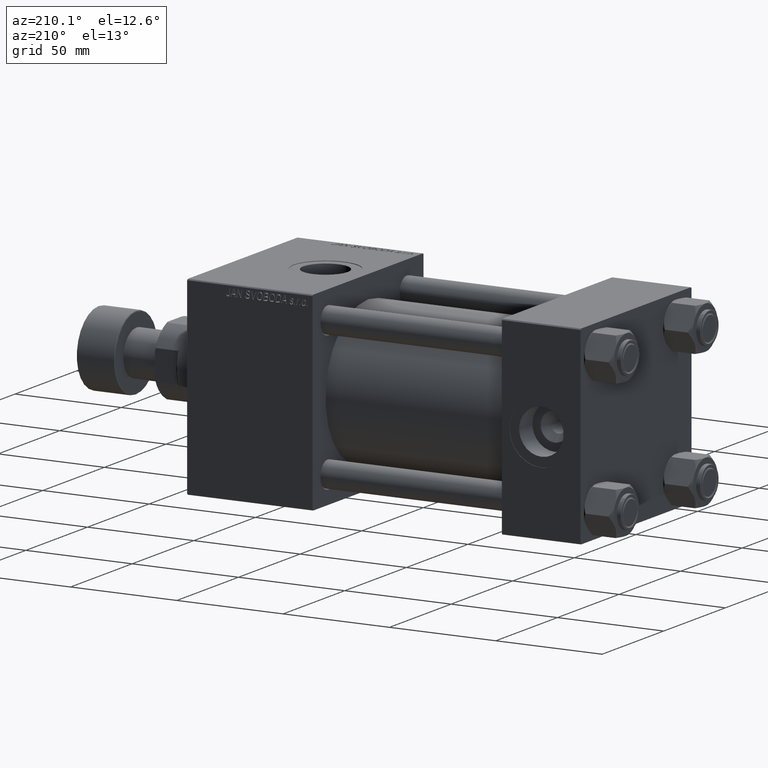
[diagram: clean part render]
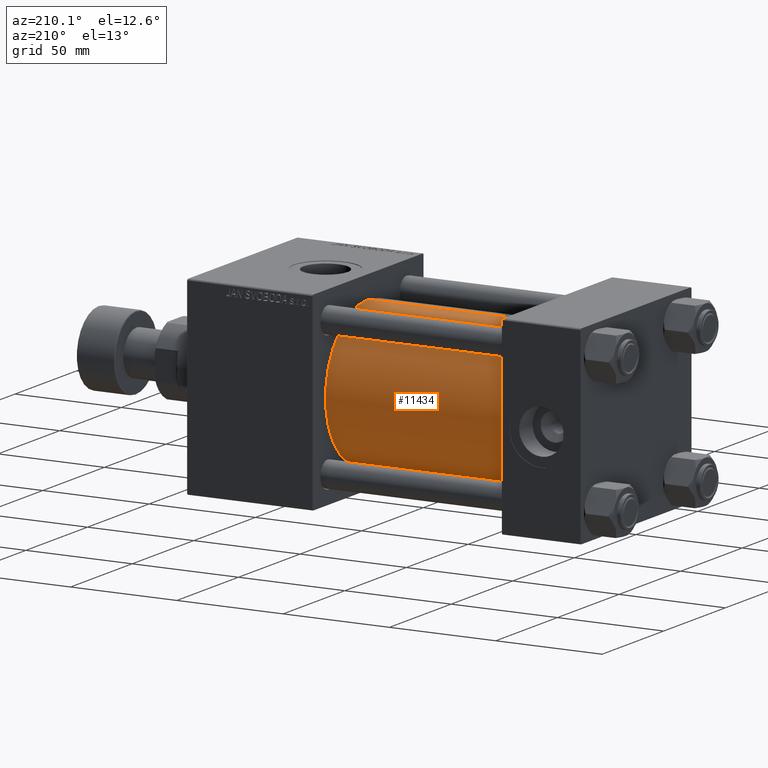
[diagram: same view with one face highlighted and labeled with its STEP entity id]
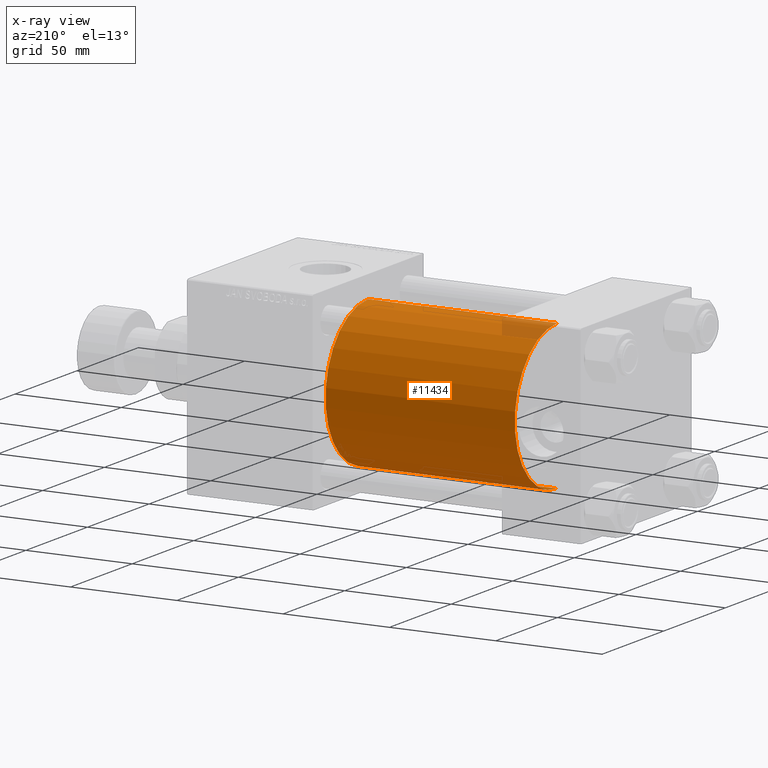
[diagram: x-ray of the same camera — body ghosted, the highlighted face saturated]
A machine part, auxiliary view. The second image highlights one B-rep face of the part: STEP entity #11434.
The next image is the same camera in x-ray: the body ghosted, the highlighted face saturated — about 3% of this face is hidden behind the body in this view.
In plain terms, the highlighted cylindrical surface (partial cylindrical patch) has radius 34.5 mm, axis along (-1, -0, -0).
Its self-contained STEP definition (entity closure, byte-faithful):
#3582 = EDGE_CURVE ( 'NONE', #20226, #5597, #17470, .T. ) ;
#5285 = VECTOR ( 'NONE', #16146, 1000.000000000000000 ) ;
#5597 = VERTEX_POINT ( 'NONE', #28532 ) ;
#9277 = DIRECTION ( 'NONE',  ( 1.000000000000000000, 0.000000000000000000, 0.000000000000000000 ) ) ;
#9538 = CARTESIAN_POINT ( 'NONE',  ( 126.0000000000000000, -2.602085213965210642E-15, 0.000000000000000000 ) ) ;
#11434 = ADVANCED_FACE ( 'NONE', ( #19176 ), #49928, .T. ) ;
#14628 = ORIENTED_EDGE ( 'NONE', *, *, #3582, .F. ) ;
#15894 = DIRECTION ( 'NONE',  ( 1.000000000000000000, -0.000000000000000000, 0.000000000000000000 ) ) ;
#16146 = DIRECTION ( 'NONE',  ( -1.000000000000000000, -0.000000000000000000, -0.000000000000000000 ) ) ;
#17470 = LINE ( 'NONE', #32589, #36033 ) ;
#17626 = CIRCLE ( 'NONE', #18471, 34.50000000000000000 ) ;
#18471 = AXIS2_PLACEMENT_3D ( 'NONE', #9538, #9277, #20789 ) ;
#18670 = DIRECTION ( 'NONE',  ( -1.000000000000000000, -0.000000000000000000, -0.000000000000000000 ) ) ;
#18991 = EDGE_CURVE ( 'NONE', #30826, #20226, #17626, .T. ) ;
#19176 = FACE_OUTER_BOUND ( 'NONE', #37634, .T. ) ;
#20065 = AXIS2_PLACEMENT_3D ( 'NONE', #22509, #18670, #38664 ) ;
#20226 = VERTEX_POINT ( 'NONE', #28340 ) ;
#20238 = LINE ( 'NONE', #48415, #5285 ) ;
#20789 = DIRECTION ( 'NONE',  ( 0.000000000000000000, 0.000000000000000000, -1.000000000000000000 ) ) ;
#22509 = CARTESIAN_POINT ( 'NONE',  ( 126.0000000000000000, -2.602085213965210642E-15, 0.000000000000000000 ) ) ;
#24216 = CARTESIAN_POINT ( 'NONE',  ( 126.0000000000000000, 1.622946243093158675E-15, -34.50000000000000000 ) ) ;
#28340 = CARTESIAN_POINT ( 'NONE',  ( 126.0000000000000000, -2.602085213965210642E-15, 34.50000000000000000 ) ) ;
#28532 = CARTESIAN_POINT ( 'NONE',  ( 37.00000000000000711, -2.602085213965210642E-15, 34.50000000000000000 ) ) ;
#28970 = CIRCLE ( 'NONE', #35523, 34.50000000000000000 ) ;
#30826 = VERTEX_POINT ( 'NONE', #24216 ) ;
#31018 = DIRECTION ( 'NONE',  ( 0.000000000000000000, 0.000000000000000000, 1.000000000000000000 ) ) ;
#32589 = CARTESIAN_POINT ( 'NONE',  ( 126.0000000000000000, -2.602085213965210642E-15, 34.50000000000000000 ) ) ;
#32845 = DIRECTION ( 'NONE',  ( -1.000000000000000000, -0.000000000000000000, -0.000000000000000000 ) ) ;
#35523 = AXIS2_PLACEMENT_3D ( 'NONE', #50498, #15894, #31018 ) ;
#36033 = VECTOR ( 'NONE', #32845, 1000.000000000000000 ) ;
#37634 = EDGE_LOOP ( 'NONE', ( #42483, #43626, #47242, #14628 ) ) ;
#38285 = CARTESIAN_POINT ( 'NONE',  ( 37.00000000000000711, 1.622946243093158675E-15, -34.50000000000000000 ) ) ;
#38664 = DIRECTION ( 'NONE',  ( 0.000000000000000000, 0.000000000000000000, 1.000000000000000000 ) ) ;
#40006 = VERTEX_POINT ( 'NONE', #38285 ) ;
#41100 = EDGE_CURVE ( 'NONE', #40006, #5597, #28970, .T. ) ;
#41154 = EDGE_CURVE ( 'NONE', #30826, #40006, #20238, .T. ) ;
#42483 = ORIENTED_EDGE ( 'NONE', *, *, #18991, .F. ) ;
#43626 = ORIENTED_EDGE ( 'NONE', *, *, #41154, .T. ) ;
#47242 = ORIENTED_EDGE ( 'NONE', *, *, #41100, .T. ) ;
#48415 = CARTESIAN_POINT ( 'NONE',  ( 126.0000000000000000, 1.622946243093158675E-15, -34.50000000000000000 ) ) ;
#49928 = CYLINDRICAL_SURFACE ( 'NONE', #20065, 34.50000000000000000 ) ;
#50498 = CARTESIAN_POINT ( 'NONE',  ( 37.00000000000000711, -2.602085213965210642E-15, 0.000000000000000000 ) ) ;